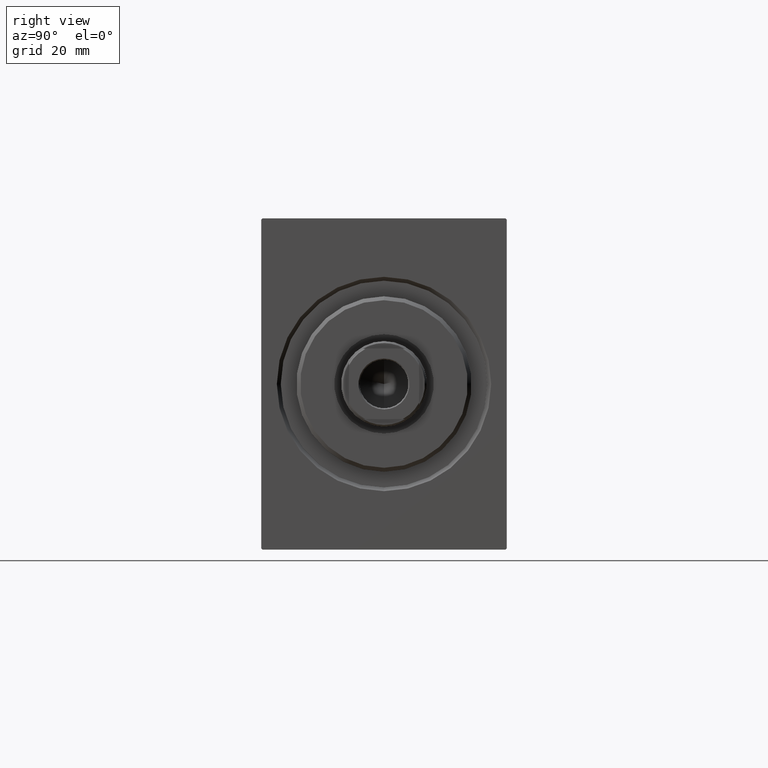
[diagram: clean part render]
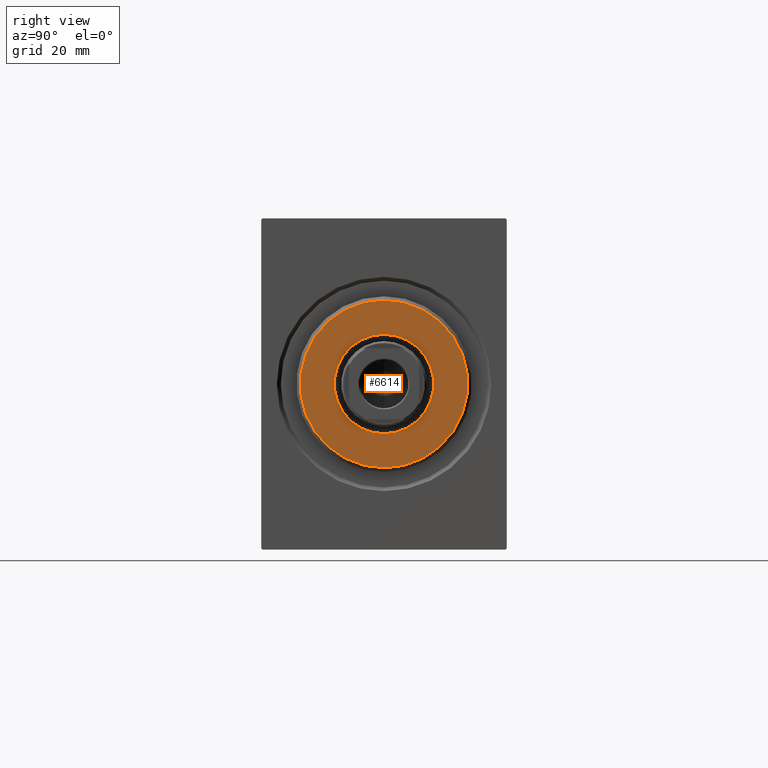
[diagram: same view with one face highlighted and labeled with its STEP entity id]
A machine part, right view. The second image highlights one B-rep face of the part: STEP entity #6614.
In plain terms, the highlighted planar face has unit normal (1, 0, 0).
Its self-contained STEP definition (entity closure, byte-faithful):
#2068 = CARTESIAN_POINT ( 'NONE',  ( 3.000000000000000000, 0.000000000000000000, 21.50000000000001066 ) ) ;
#2463 = VERTEX_POINT ( 'NONE', #6893 ) ;
#4920 = AXIS2_PLACEMENT_3D ( 'NONE', #32989, #19526, #36009 ) ;
#5670 = VERTEX_POINT ( 'NONE', #13147 ) ;
#5677 = DIRECTION ( 'NONE',  ( 0.000000000000000000, 0.000000000000000000, -1.000000000000000000 ) ) ;
#6614 = ADVANCED_FACE ( 'NONE', ( #9476, #28781 ), #28560, .T. ) ;
#6857 = VERTEX_POINT ( 'NONE', #2068 ) ;
#6893 = CARTESIAN_POINT ( 'NONE',  ( 3.000000000000000000, 2.694222958124177993E-15, -21.50000000000001066 ) ) ;
#7024 = CIRCLE ( 'NONE', #4920, 21.50000000000001066 ) ;
#9235 = DIRECTION ( 'NONE',  ( 1.000000000000000000, -0.000000000000000000, 0.000000000000000000 ) ) ;
#9476 = FACE_OUTER_BOUND ( 'NONE', #21599, .T. ) ;
#9827 = CIRCLE ( 'NONE', #29932, 21.50000000000001066 ) ;
#11028 = EDGE_CURVE ( 'NONE', #23500, #5670, #19690, .T. ) ;
#12508 = DIRECTION ( 'NONE',  ( 1.000000000000000000, -0.000000000000000000, 0.000000000000000000 ) ) ;
#12904 = ORIENTED_EDGE ( 'NONE', *, *, #11028, .T. ) ;
#13147 = CARTESIAN_POINT ( 'NONE',  ( 3.000000000000000000, 0.000000000000000000, 12.75000000000000000 ) ) ;
#14661 = CARTESIAN_POINT ( 'NONE',  ( 3.000000000000000000, 0.000000000000000000, 0.000000000000000000 ) ) ;
#15325 = CARTESIAN_POINT ( 'NONE',  ( 3.000000000000000000, 0.000000000000000000, 0.000000000000000000 ) ) ;
#18126 = DIRECTION ( 'NONE',  ( -1.000000000000000000, 0.000000000000000000, -0.000000000000000000 ) ) ;
#19118 = CARTESIAN_POINT ( 'NONE',  ( 3.000000000000000000, 0.000000000000000000, 0.000000000000000000 ) ) ;
#19526 = DIRECTION ( 'NONE',  ( 1.000000000000000000, -0.000000000000000000, 0.000000000000000000 ) ) ;
#19690 = CIRCLE ( 'NONE', #38394, 12.75000000000000000 ) ;
#20997 = EDGE_LOOP ( 'NONE', ( #27868, #12904 ) ) ;
#21441 = AXIS2_PLACEMENT_3D ( 'NONE', #38755, #12508, #42678 ) ;
#21599 = EDGE_LOOP ( 'NONE', ( #41738, #39831 ) ) ;
#21777 = AXIS2_PLACEMENT_3D ( 'NONE', #14661, #18126, #37229 ) ;
#23500 = VERTEX_POINT ( 'NONE', #31888 ) ;
#26067 = DIRECTION ( 'NONE',  ( -1.000000000000000000, 0.000000000000000000, -0.000000000000000000 ) ) ;
#27868 = ORIENTED_EDGE ( 'NONE', *, *, #42718, .T. ) ;
#28560 = PLANE ( 'NONE',  #21441 ) ;
#28781 = FACE_BOUND ( 'NONE', #20997, .T. ) ;
#29932 = AXIS2_PLACEMENT_3D ( 'NONE', #15325, #9235, #42005 ) ;
#31888 = CARTESIAN_POINT ( 'NONE',  ( 3.000000000000000000, 1.561424668912874914E-15, -12.75000000000000000 ) ) ;
#32989 = CARTESIAN_POINT ( 'NONE',  ( 3.000000000000000000, 0.000000000000000000, 0.000000000000000000 ) ) ;
#33159 = EDGE_CURVE ( 'NONE', #6857, #2463, #7024, .T. ) ;
#35446 = EDGE_CURVE ( 'NONE', #2463, #6857, #9827, .T. ) ;
#36009 = DIRECTION ( 'NONE',  ( 0.000000000000000000, 0.000000000000000000, -1.000000000000000000 ) ) ;
#37229 = DIRECTION ( 'NONE',  ( 0.000000000000000000, 0.000000000000000000, -1.000000000000000000 ) ) ;
#37649 = CIRCLE ( 'NONE', #21777, 12.75000000000000000 ) ;
#38394 = AXIS2_PLACEMENT_3D ( 'NONE', #19118, #26067, #5677 ) ;
#38755 = CARTESIAN_POINT ( 'NONE',  ( 3.000000000000000000, 0.000000000000000000, 0.000000000000000000 ) ) ;
#39831 = ORIENTED_EDGE ( 'NONE', *, *, #35446, .T. ) ;
#41738 = ORIENTED_EDGE ( 'NONE', *, *, #33159, .T. ) ;
#42005 = DIRECTION ( 'NONE',  ( 0.000000000000000000, 0.000000000000000000, -1.000000000000000000 ) ) ;
#42678 = DIRECTION ( 'NONE',  ( 0.000000000000000000, 0.000000000000000000, -1.000000000000000000 ) ) ;
#42718 = EDGE_CURVE ( 'NONE', #5670, #23500, #37649, .T. ) ;